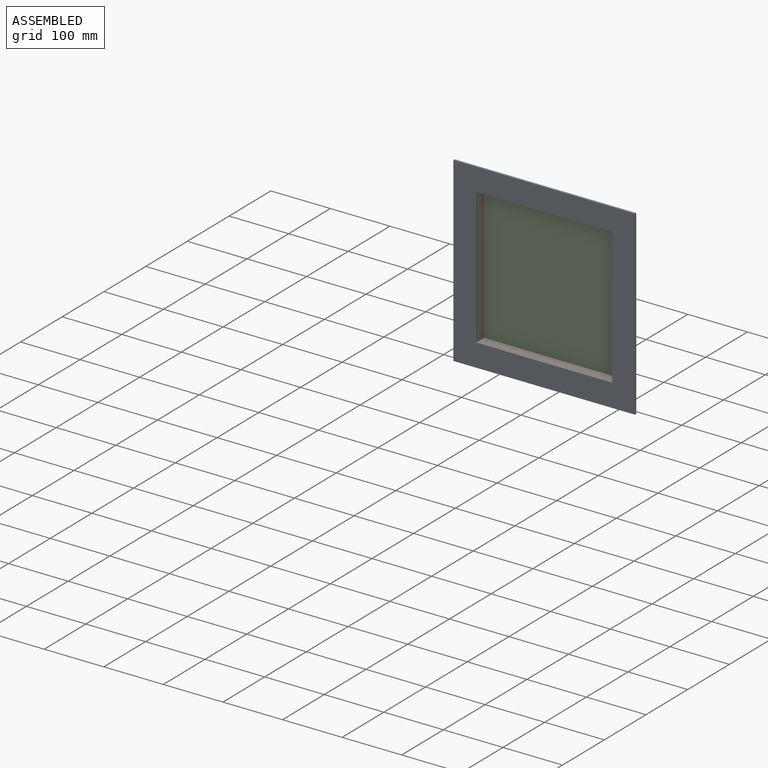
[diagram: assembled view]
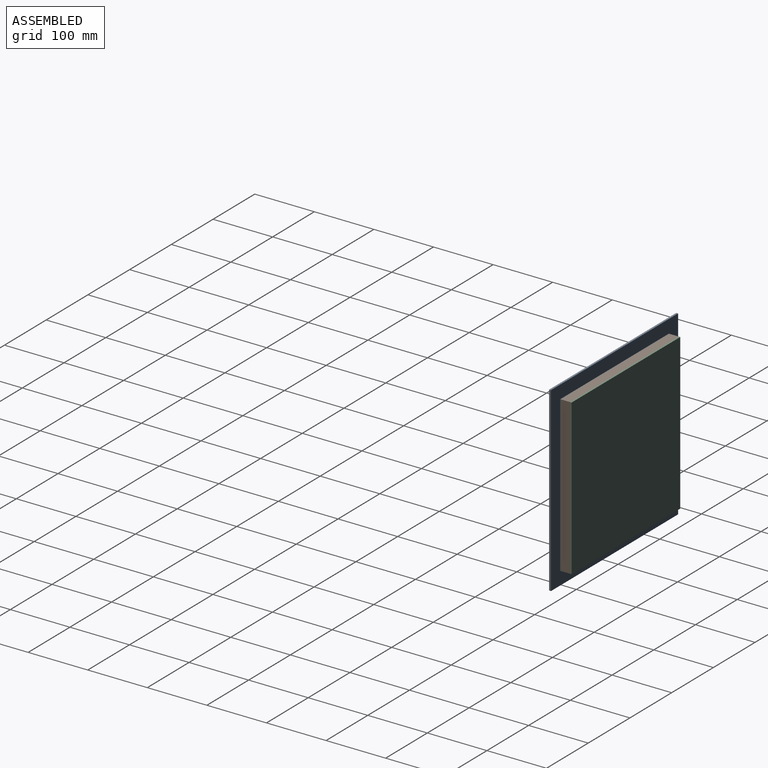
[diagram: assembled view, second angle]
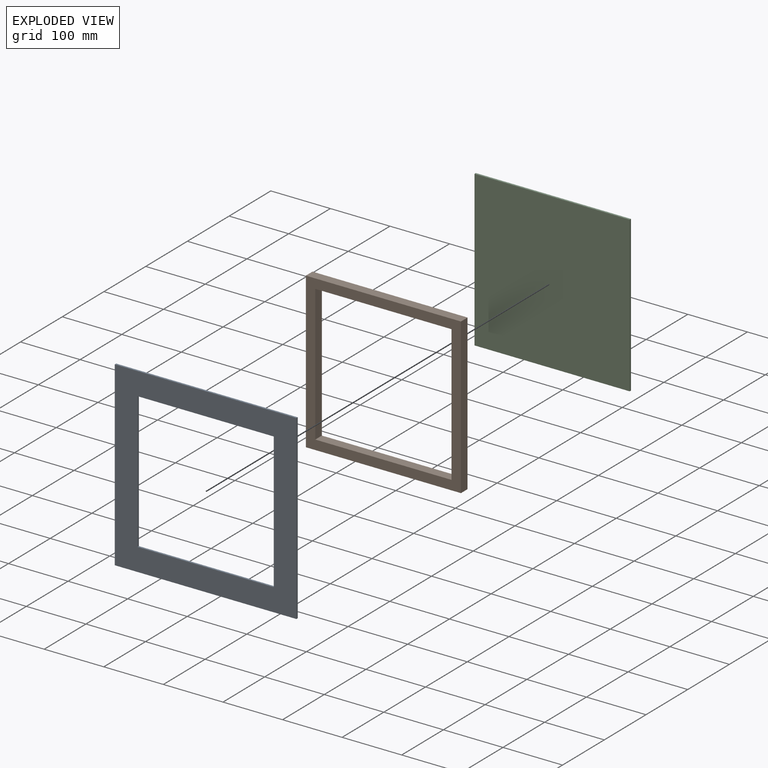
[diagram: exploded view]
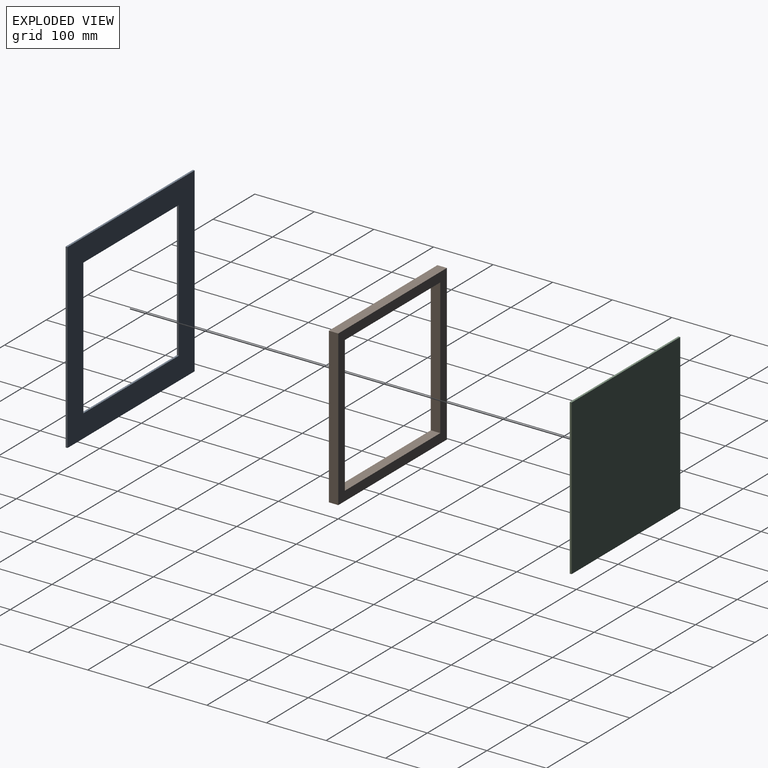
[diagram: exploded view, second angle]
ASSEMBLY  parts=3 mates=2
PART A: 10 faces, bbox 304.8x3.2x304.8 mm
  f0: plane 304.8x3.18mm, normal (0,0,-1), area 967.7mm2, adj f1,f7,f8,f9
  f1: plane 304.8x3.18mm, normal (1,0,0), area 967.7mm2, adj f0,f2,f8,f9
  f2: plane 304.8x3.18mm, normal (0,0,1), area 967.7mm2, adj f1,f7,f8,f9
  f3: plane 228.6x3.18mm, normal (-1,0,0), area 725.8mm2, adj f4,f6,f8,f9
  f4: plane 228.6x3.18mm, normal (0,0,1), area 725.8mm2, adj f3,f5,f8,f9
  f5: plane 228.6x3.18mm, normal (1,0,0), area 725.8mm2, adj f4,f6,f8,f9
  f6: plane 228.6x3.18mm, normal (0,0,-1), area 725.8mm2, adj f3,f5,f8,f9
  f7: plane 304.8x3.18mm, normal (-1,0,0), area 967.7mm2, adj f0,f2,f8,f9
  f8: plane 304.8x304.8mm, normal (0,-1,0), area 40645.1mm2, adj f0,f1,f2,f3,f4,f5,f6,f7
  f9: plane 304.8x304.8mm, normal (0,1,0), area 40645.1mm2, adj f0,f1,f2,f3,f4,f5,f6,f7
PART B: 10 faces, bbox 260.4x15.9x260.4 mm
  f0: plane 260.35x15.88mm, normal (0,0,-1), area 4133.1mm2, adj f1,f7,f8,f9
  f1: plane 260.35x15.88mm, normal (1,0,0), area 4133.1mm2, adj f0,f2,f8,f9
  f2: plane 260.35x15.88mm, normal (0,0,1), area 4133.1mm2, adj f1,f7,f8,f9
  f3: plane 228.6x15.88mm, normal (-1,0,0), area 3629mm2, adj f4,f6,f8,f9
  f4: plane 228.6x15.88mm, normal (0,0,1), area 3629mm2, adj f3,f5,f8,f9
  f5: plane 228.6x15.88mm, normal (1,0,0), area 3629mm2, adj f4,f6,f8,f9
  f6: plane 228.6x15.88mm, normal (0,0,-1), area 3629mm2, adj f3,f5,f8,f9
  f7: plane 260.35x15.88mm, normal (-1,0,0), area 4133.1mm2, adj f0,f2,f8,f9
  f8: plane 260.35x260.35mm, normal (0,-1,0), area 15524.2mm2, adj f0,f1,f2,f3,f4,f5,f6,f7
  f9: plane 260.35x260.35mm, normal (0,1,0), area 15524.2mm2, adj f0,f1,f2,f3,f4,f5,f6,f7
PART C: 6 faces, bbox 260.4x3.2x260.4 mm
  f0: plane 260.35x3.18mm, normal (0,0,-1), area 826.6mm2, adj f1,f3,f4,f5
  f1: plane 260.35x3.18mm, normal (1,0,0), area 826.6mm2, adj f0,f2,f4,f5
  f2: plane 260.35x3.18mm, normal (0,0,1), area 826.6mm2, adj f1,f3,f4,f5
  f3: plane 260.35x3.18mm, normal (-1,0,0), area 826.6mm2, adj f0,f2,f4,f5
  f4: plane 260.35x260.35mm, normal (0,-1,0), area 67782.1mm2, adj f0,f1,f2,f3
  f5: plane 260.35x260.35mm, normal (0,1,0), area 67782.1mm2, adj f0,f1,f2,f3
PLACE A t=(-16.66,-17.46,-8.95)mm
PLACE B t=(-16.66,-1.59,-8.95)mm
PLACE C t=(-16.66,1.59,-8.95)mm
MATE fastened B.f9 <-> C.f4  axis (0,1,0) through (-16.66,-1.59,-8.95)mm
MATE fastened A.f9 <-> B.f8  axis (0,1,0) through (-16.66,-17.46,-8.95)mm
